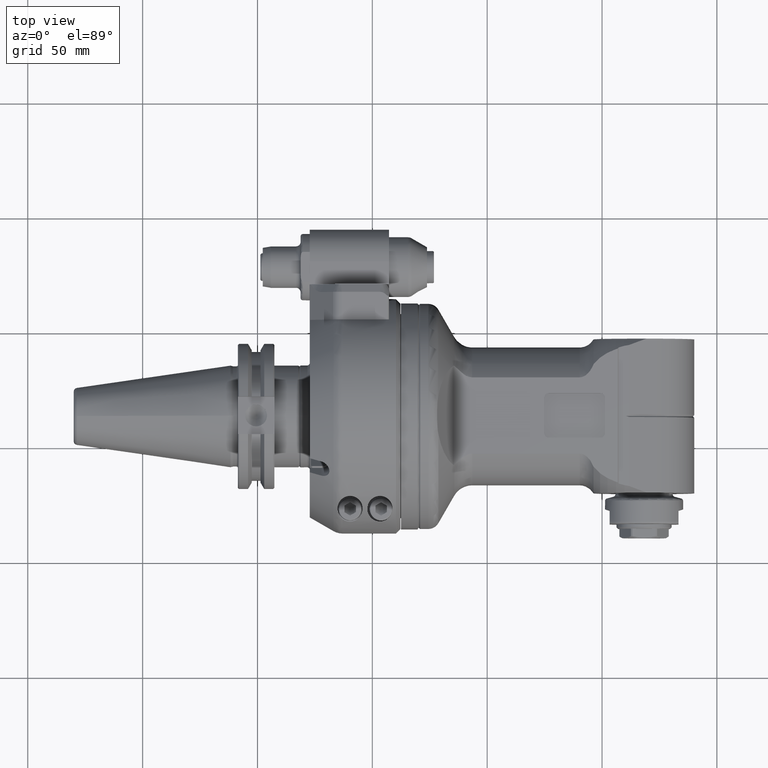
[diagram: clean part render]
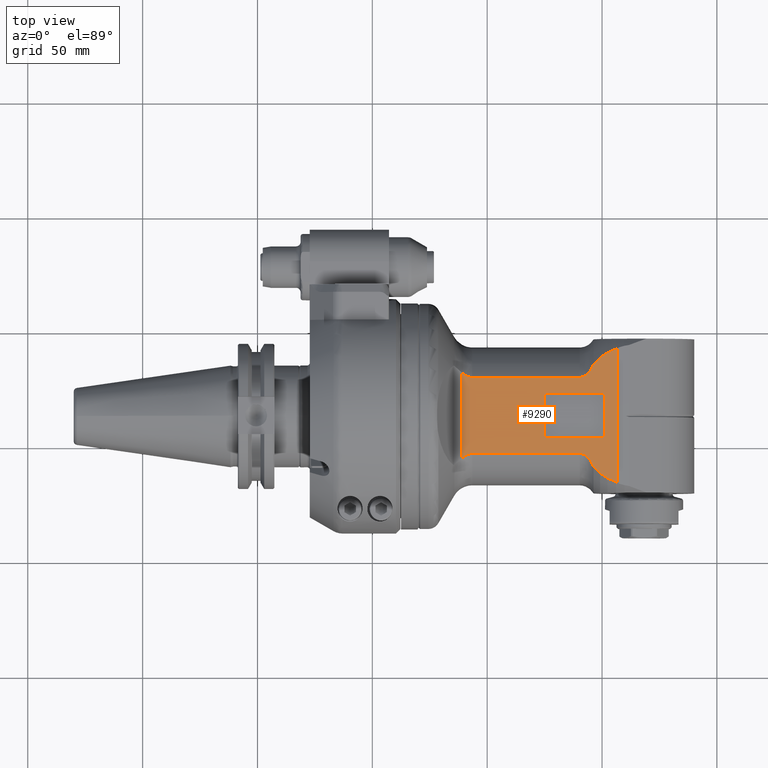
[diagram: same view with one face highlighted and labeled with its STEP entity id]
A machine part, top view. The second image highlights one B-rep face of the part: STEP entity #9290.
In plain terms, the highlighted planar face has unit normal (-0, 0, -1).
Its self-contained STEP definition (entity closure, byte-faithful):
#68=B_SPLINE_CURVE_WITH_KNOTS('',3,(#14260,#14261,#14262,#14263,#14264,
#14265,#14266,#14267),.UNSPECIFIED.,.F.,.F.,(4,2,2,4),(2.68007420427812,
2.85940536172762,3.00882891197884,3.1423743118532),.UNSPECIFIED.);
#69=B_SPLINE_CURVE_WITH_KNOTS('',3,(#14271,#14272,#14273,#14274,#14275,
#14276,#14277,#14278,#14279,#14280,#14281,#14282,#14283,#14284),
 .UNSPECIFIED.,.F.,.F.,(4,2,2,2,2,2,4),(-3.32581351683858,-3.21328851460941,
-3.0207654607387,-2.86863153258841,-2.71649760443812,-2.60114781955608,
-2.49776209313838),.UNSPECIFIED.);
#70=B_SPLINE_CURVE_WITH_KNOTS('',3,(#14315,#14316,#14317,#14318,#14319,
#14320,#14321,#14322,#14323,#14324,#14325,#14326,#14327,#14328),
 .UNSPECIFIED.,.F.,.F.,(4,2,2,2,2,2,4),(-2.49776209313838,-2.39437636672067,
-2.27902658183863,-2.12689265368834,-1.97475872553806,-1.78223567166734,
-1.66971058202039),.UNSPECIFIED.);
#71=B_SPLINE_CURVE_WITH_KNOTS('',3,(#14331,#14332,#14333,#14334,#14335,
#14336,#14337,#14338),.UNSPECIFIED.,.F.,.F.,(4,2,2,4),(3.1423743118532,
3.27591971172755,3.42534326197877,3.60467441942828),.UNSPECIFIED.);
#221=(
BOUNDED_CURVE()
B_SPLINE_CURVE(2,(#14250,#14251,#14252),.UNSPECIFIED.,.F.,.F.)
B_SPLINE_CURVE_WITH_KNOTS((3,3),(10.0626799056423,10.2526008068643),
 .UNSPECIFIED.)
CURVE()
GEOMETRIC_REPRESENTATION_ITEM()
RATIONAL_B_SPLINE_CURVE((1.02840572051089,1.01882819886388,1.00887903028035))
REPRESENTATION_ITEM('')
);
#222=(
BOUNDED_CURVE()
B_SPLINE_CURVE(2,(#14286,#14287,#14288),.UNSPECIFIED.,.F.,.F.)
B_SPLINE_CURVE_WITH_KNOTS((3,3),(-0.959764099372572,-0.6704163678676),
 .UNSPECIFIED.)
CURVE()
GEOMETRIC_REPRESENTATION_ITEM()
RATIONAL_B_SPLINE_CURVE((1.13756783349126,1.11959978720312,1.09996228300112))
REPRESENTATION_ITEM('')
);
#223=(
BOUNDED_CURVE()
B_SPLINE_CURVE(2,(#14289,#14290,#14291),.UNSPECIFIED.,.F.,.F.)
B_SPLINE_CURVE_WITH_KNOTS((3,3),(-0.532913393846783,-0.318014091893998),
 .UNSPECIFIED.)
CURVE()
GEOMETRIC_REPRESENTATION_ITEM()
RATIONAL_B_SPLINE_CURVE((1.06657051683378,1.05402008065282,1.04076639606592))
REPRESENTATION_ITEM('')
);
#224=(
BOUNDED_CURVE()
B_SPLINE_CURVE(2,(#14293,#14294,#14295),.UNSPECIFIED.,.F.,.F.)
B_SPLINE_CURVE_WITH_KNOTS((3,3),(0.177103965921413,0.209806671999694),
 .UNSPECIFIED.)
CURVE()
GEOMETRIC_REPRESENTATION_ITEM()
RATIONAL_B_SPLINE_CURVE((1.01355670021788,1.01479304991963,1.01602375286964))
REPRESENTATION_ITEM('')
);
#225=(
BOUNDED_CURVE()
B_SPLINE_CURVE(2,(#14299,#14300,#14301),.UNSPECIFIED.,.F.,.F.)
B_SPLINE_CURVE_WITH_KNOTS((3,3),(14.4648398716209,14.4975425776885),
 .UNSPECIFIED.)
CURVE()
GEOMETRIC_REPRESENTATION_ITEM()
RATIONAL_B_SPLINE_CURVE((1.01602375273381,1.01479304978397,1.01355670008238))
REPRESENTATION_ITEM('')
);
#226=(
BOUNDED_CURVE()
B_SPLINE_CURVE(2,(#14303,#14304,#14305),.UNSPECIFIED.,.F.,.F.)
B_SPLINE_CURVE_WITH_KNOTS((3,3),(-10.2522074218785,-10.0622916795826),
 .UNSPECIFIED.)
CURVE()
GEOMETRIC_REPRESENTATION_ITEM()
RATIONAL_B_SPLINE_CURVE((1.0088666855915,1.01881573243655,1.02839313689258))
REPRESENTATION_ITEM('')
);
#227=(
BOUNDED_CURVE()
B_SPLINE_CURVE(2,(#14307,#14308,#14309),.UNSPECIFIED.,.F.,.F.)
B_SPLINE_CURVE_WITH_KNOTS((3,3),(-8.41775624130447,-8.20286393257769),
 .UNSPECIFIED.)
CURVE()
GEOMETRIC_REPRESENTATION_ITEM()
RATIONAL_B_SPLINE_CURVE((1.0407483367188,1.05400179132849,1.06655200973496))
REPRESENTATION_ITEM('')
);
#228=(
BOUNDED_CURVE()
B_SPLINE_CURVE(2,(#14311,#14312,#14313),.UNSPECIFIED.,.F.,.F.)
B_SPLINE_CURVE_WITH_KNOTS((3,3),(-7.47705651106012,-7.18771987266258),
 .UNSPECIFIED.)
CURVE()
GEOMETRIC_REPRESENTATION_ITEM()
RATIONAL_B_SPLINE_CURVE((1.09993449274313,1.11957149630538,1.13753908489786))
REPRESENTATION_ITEM('')
);
#363=FACE_BOUND('',#2682,.T.);
#659=LINE('',#14258,#1284);
#660=LINE('',#14269,#1285);
#661=LINE('',#14297,#1286);
#662=LINE('',#14330,#1287);
#663=LINE('',#14341,#1288);
#664=LINE('',#14345,#1289);
#665=LINE('',#14349,#1290);
#666=LINE('',#14353,#1291);
#1284=VECTOR('',#11308,37.09647208267);
#1285=VECTOR('',#11309,46.7720146362);
#1286=VECTOR('',#11310,10.);
#1287=VECTOR('',#11311,46.7720146362);
#1288=VECTOR('',#11312,22.5);
#1289=VECTOR('',#11315,15.5);
#1290=VECTOR('',#11318,22.5);
#1291=VECTOR('',#11321,15.5);
#2075=FACE_OUTER_BOUND('',#2681,.T.);
#2681=EDGE_LOOP('',(#6434,#6435,#6436,#6437,#6438,#6439,#6440,#6441,#6442,
#6443,#6444,#6445,#6446,#6447,#6448,#6449));
#2682=EDGE_LOOP('',(#6450,#6451,#6452,#6453,#6454,#6455,#6456,#6457));
#3379=CIRCLE('',#10009,2.);
#3380=CIRCLE('',#10010,2.);
#3381=CIRCLE('',#10011,2.);
#3382=CIRCLE('',#10012,2.);
#3929=VERTEX_POINT('',#14248);
#3930=VERTEX_POINT('',#14249);
#3931=VERTEX_POINT('',#14256);
#3932=VERTEX_POINT('',#14257);
#3933=VERTEX_POINT('',#14259);
#3934=VERTEX_POINT('',#14268);
#3935=VERTEX_POINT('',#14270);
#3936=VERTEX_POINT('',#14285);
#3937=VERTEX_POINT('',#14292);
#3938=VERTEX_POINT('',#14296);
#3939=VERTEX_POINT('',#14298);
#3940=VERTEX_POINT('',#14302);
#3941=VERTEX_POINT('',#14306);
#3942=VERTEX_POINT('',#14310);
#3943=VERTEX_POINT('',#14314);
#3944=VERTEX_POINT('',#14329);
#3945=VERTEX_POINT('',#14339);
#3946=VERTEX_POINT('',#14340);
#3947=VERTEX_POINT('',#14342);
#3948=VERTEX_POINT('',#14344);
#3949=VERTEX_POINT('',#14346);
#3950=VERTEX_POINT('',#14348);
#3951=VERTEX_POINT('',#14350);
#3952=VERTEX_POINT('',#14352);
#4905=EDGE_CURVE('',#3929,#3930,#221,.T.);
#4908=EDGE_CURVE('',#3931,#3932,#659,.T.);
#4909=EDGE_CURVE('',#3931,#3933,#68,.T.);
#4910=EDGE_CURVE('',#3934,#3933,#660,.T.);
#4911=EDGE_CURVE('',#3935,#3934,#69,.T.);
#4912=EDGE_CURVE('',#3935,#3936,#222,.T.);
#4913=EDGE_CURVE('',#3936,#3929,#223,.T.);
#4914=EDGE_CURVE('',#3937,#3930,#224,.T.);
#4915=EDGE_CURVE('',#3938,#3937,#661,.T.);
#4916=EDGE_CURVE('',#3939,#3938,#225,.T.);
#4917=EDGE_CURVE('',#3939,#3940,#226,.T.);
#4918=EDGE_CURVE('',#3940,#3941,#227,.T.);
#4919=EDGE_CURVE('',#3941,#3942,#228,.T.);
#4920=EDGE_CURVE('',#3943,#3942,#70,.T.);
#4921=EDGE_CURVE('',#3944,#3943,#662,.T.);
#4922=EDGE_CURVE('',#3944,#3932,#71,.T.);
#4923=EDGE_CURVE('',#3945,#3946,#663,.T.);
#4924=EDGE_CURVE('',#3946,#3947,#3379,.T.);
#4925=EDGE_CURVE('',#3947,#3948,#664,.T.);
#4926=EDGE_CURVE('',#3948,#3949,#3380,.T.);
#4927=EDGE_CURVE('',#3949,#3950,#665,.T.);
#4928=EDGE_CURVE('',#3950,#3951,#3381,.T.);
#4929=EDGE_CURVE('',#3951,#3952,#666,.T.);
#4930=EDGE_CURVE('',#3952,#3945,#3382,.T.);
#6434=ORIENTED_EDGE('',*,*,#4908,.F.);
#6435=ORIENTED_EDGE('',*,*,#4909,.T.);
#6436=ORIENTED_EDGE('',*,*,#4910,.F.);
#6437=ORIENTED_EDGE('',*,*,#4911,.F.);
#6438=ORIENTED_EDGE('',*,*,#4912,.T.);
#6439=ORIENTED_EDGE('',*,*,#4913,.T.);
#6440=ORIENTED_EDGE('',*,*,#4905,.T.);
#6441=ORIENTED_EDGE('',*,*,#4914,.F.);
#6442=ORIENTED_EDGE('',*,*,#4915,.F.);
#6443=ORIENTED_EDGE('',*,*,#4916,.F.);
#6444=ORIENTED_EDGE('',*,*,#4917,.T.);
#6445=ORIENTED_EDGE('',*,*,#4918,.T.);
#6446=ORIENTED_EDGE('',*,*,#4919,.T.);
#6447=ORIENTED_EDGE('',*,*,#4920,.F.);
#6448=ORIENTED_EDGE('',*,*,#4921,.F.);
#6449=ORIENTED_EDGE('',*,*,#4922,.T.);
#6450=ORIENTED_EDGE('',*,*,#4923,.T.);
#6451=ORIENTED_EDGE('',*,*,#4924,.T.);
#6452=ORIENTED_EDGE('',*,*,#4925,.T.);
#6453=ORIENTED_EDGE('',*,*,#4926,.T.);
#6454=ORIENTED_EDGE('',*,*,#4927,.T.);
#6455=ORIENTED_EDGE('',*,*,#4928,.T.);
#6456=ORIENTED_EDGE('',*,*,#4929,.T.);
#6457=ORIENTED_EDGE('',*,*,#4930,.T.);
#9013=PLANE('',#10008);
#9290=ADVANCED_FACE('',(#2075,#363),#9013,.F.);
#10008=AXIS2_PLACEMENT_3D('',#14255,#11306,#11307);
#10009=AXIS2_PLACEMENT_3D('',#14343,#11313,#11314);
#10010=AXIS2_PLACEMENT_3D('',#14347,#11316,#11317);
#10011=AXIS2_PLACEMENT_3D('',#14351,#11319,#11320);
#10012=AXIS2_PLACEMENT_3D('',#14354,#11322,#11323);
#11306=DIRECTION('center_axis',(0.,0.,-1.));
#11307=DIRECTION('ref_axis',(1.,0.,0.));
#11308=DIRECTION('',(0.,1.,0.));
#11309=DIRECTION('',(-1.,0.,0.));
#11310=DIRECTION('',(0.,-1.,0.));
#11311=DIRECTION('',(1.,0.,0.));
#11312=DIRECTION('',(-1.,0.,0.));
#11313=DIRECTION('center_axis',(0.,0.,-1.));
#11314=DIRECTION('ref_axis',(0.,-1.,0.));
#11315=DIRECTION('',(0.,1.,0.));
#11316=DIRECTION('center_axis',(0.,0.,-1.));
#11317=DIRECTION('ref_axis',(-1.,0.,0.));
#11318=DIRECTION('',(1.,0.,0.));
#11319=DIRECTION('center_axis',(0.,0.,-1.));
#11320=DIRECTION('ref_axis',(0.,1.,0.));
#11321=DIRECTION('',(0.,-1.,0.));
#11322=DIRECTION('center_axis',(0.,0.,-1.));
#11323=DIRECTION('ref_axis',(1.,0.,0.));
#14248=CARTESIAN_POINT('',(94.0730565743641,-27.2763634946809,24.9999999690279));
#14249=CARTESIAN_POINT('',(97.766276708296,-28.8832131299173,24.9999999959775));
#14250=CARTESIAN_POINT('Ctrl Pts',(94.0730565896248,-27.2763634604014,25.));
#14251=CARTESIAN_POINT('Ctrl Pts',(95.8668310521675,-28.0669676858729,25.));
#14252=CARTESIAN_POINT('Ctrl Pts',(97.7662767088955,-28.8832131285638,25.));
#14255=CARTESIAN_POINT('Origin',(48.00000004466,-58.8000024,25.));
#14256=CARTESIAN_POINT('',(30.8008301975,-18.54823604133,25.));
#14257=CARTESIAN_POINT('',(30.8008301975,18.54823604133,25.));
#14258=CARTESIAN_POINT('',(30.8008301975,-18.54823604133,25.));
#14259=CARTESIAN_POINT('',(35.16580758197,-16.58312395178,25.));
#14260=CARTESIAN_POINT('Ctrl Pts',(30.8008301975013,-18.5482360413314,25.));
#14261=CARTESIAN_POINT('Ctrl Pts',(31.2768824719658,-18.1051437659629,25.));
#14262=CARTESIAN_POINT('Ctrl Pts',(31.7927287077858,-17.713449802726,25.));
#14263=CARTESIAN_POINT('Ctrl Pts',(32.7382766269785,-17.1595326432425,25.));
#14264=CARTESIAN_POINT('Ctrl Pts',(33.2844305992261,-16.9167277905047,25.));
#14265=CARTESIAN_POINT('Ctrl Pts',(34.1920196550243,-16.6598919965139,25.));
#14266=CARTESIAN_POINT('Ctrl Pts',(34.7206562490555,-16.583123951777,25.));
#14267=CARTESIAN_POINT('Ctrl Pts',(35.16580758197,-16.583123951777,25.));
#14268=CARTESIAN_POINT('',(81.93782221817,-16.58312395178,25.));
#14269=CARTESIAN_POINT('',(81.93782221817,-16.58312395178,25.));
#14270=CARTESIAN_POINT('',(88.0000003213942,-22.2991037344195,24.9999998483624));
#14271=CARTESIAN_POINT('Ctrl Pts',(88.0000002856868,-22.2991037481422,25.));
#14272=CARTESIAN_POINT('Ctrl Pts',(87.8570280916971,-21.9270808407463,25.));
#14273=CARTESIAN_POINT('Ctrl Pts',(87.6935946921902,-21.5500745930567,25.));
#14274=CARTESIAN_POINT('Ctrl Pts',(87.2036025382881,-20.5518000895077,25.));
#14275=CARTESIAN_POINT('Ctrl Pts',(86.8418295870736,-19.9481759632981,25.));
#14276=CARTESIAN_POINT('Ctrl Pts',(86.1684215512574,-19.0173735566937,25.));
#14277=CARTESIAN_POINT('Ctrl Pts',(85.8122244578217,-18.5891145938405,25.));
#14278=CARTESIAN_POINT('Ctrl Pts',(85.0206983836014,-17.8190712330243,25.));
#14279=CARTESIAN_POINT('Ctrl Pts',(84.5843919534727,-17.478292191667,25.));
#14280=CARTESIAN_POINT('Ctrl Pts',(83.8152160730215,-17.0273586096957,25.));
#14281=CARTESIAN_POINT('Ctrl Pts',(83.3934489095303,-16.8402713953867,25.));
#14282=CARTESIAN_POINT('Ctrl Pts',(82.6917353349449,-16.6422520575151,25.));
#14283=CARTESIAN_POINT('Ctrl Pts',(82.282441306229,-16.583123951777,25.));
#14284=CARTESIAN_POINT('Ctrl Pts',(81.93782221817,-16.583123951777,25.));
#14285=CARTESIAN_POINT('',(90.8562966483786,-25.2041669857687,24.9999998136759));
#14286=CARTESIAN_POINT('Ctrl Pts',(88.000000482371,-22.2991035814185,25.));
#14287=CARTESIAN_POINT('Ctrl Pts',(89.3408101630023,-23.7095328932192,25.));
#14288=CARTESIAN_POINT('Ctrl Pts',(90.8562966895663,-25.2041669449931,25.));
#14289=CARTESIAN_POINT('Ctrl Pts',(90.8562967754463,-25.2041667933738,25.));
#14290=CARTESIAN_POINT('Ctrl Pts',(92.4011697074171,-26.2188286251669,25.));
#14291=CARTESIAN_POINT('Ctrl Pts',(94.0730565813035,-27.2763634840399,25.));
#14292=CARTESIAN_POINT('',(98.4900005095658,-29.0863623621592,24.999999794761));
#14293=CARTESIAN_POINT('Ctrl Pts',(98.4900006372509,-29.086361927791,25.));
#14294=CARTESIAN_POINT('Ctrl Pts',(98.1268705630049,-28.9845834161671,25.));
#14295=CARTESIAN_POINT('Ctrl Pts',(97.7662767096866,-28.8832131250135,25.));
#14296=CARTESIAN_POINT('',(98.4900005095658,29.0863623621592,24.999999794761));
#14297=CARTESIAN_POINT('',(98.4900000000001,-29.4000012000001,25.));
#14298=CARTESIAN_POINT('',(97.7662767082955,28.883213129917,24.9999999959776));
#14299=CARTESIAN_POINT('Ctrl Pts',(97.766276709686,28.8832131250133,25.));
#14300=CARTESIAN_POINT('Ctrl Pts',(98.1268705630045,28.984583416167,25.));
#14301=CARTESIAN_POINT('Ctrl Pts',(98.4900006372509,29.0863619277909,25.));
#14302=CARTESIAN_POINT('',(94.0730565743643,27.276363494681,24.9999999690278));
#14303=CARTESIAN_POINT('Ctrl Pts',(97.7662767088949,28.8832131285635,25.));
#14304=CARTESIAN_POINT('Ctrl Pts',(95.8668310521673,28.0669676858729,25.));
#14305=CARTESIAN_POINT('Ctrl Pts',(94.073056589625,27.2763634604015,25.));
#14306=CARTESIAN_POINT('',(90.8562966483176,25.2041669856958,24.9999998136967));
#14307=CARTESIAN_POINT('Ctrl Pts',(94.0730565813037,27.27636348404,25.));
#14308=CARTESIAN_POINT('Ctrl Pts',(92.401169707376,26.218828625141,25.));
#14309=CARTESIAN_POINT('Ctrl Pts',(90.8562967753703,25.2041667933239,25.));
#14310=CARTESIAN_POINT('',(88.0000007039945,22.2991045825147,24.999999638726));
#14311=CARTESIAN_POINT('Ctrl Pts',(90.8562966894988,25.2041669449266,25.));
#14312=CARTESIAN_POINT('Ctrl Pts',(89.3408105043881,23.7095332299057,25.));
#14313=CARTESIAN_POINT('Ctrl Pts',(88.000001087571,22.2991042180426,25.));
#14314=CARTESIAN_POINT('',(81.93782221817,16.58312395178,25.));
#14315=CARTESIAN_POINT('Ctrl Pts',(81.93782221817,16.583123951777,25.));
#14316=CARTESIAN_POINT('Ctrl Pts',(82.282441306229,16.583123951777,25.));
#14317=CARTESIAN_POINT('Ctrl Pts',(82.6917353349449,16.6422520575151,25.));
#14318=CARTESIAN_POINT('Ctrl Pts',(83.3934489095303,16.8402713953867,25.));
#14319=CARTESIAN_POINT('Ctrl Pts',(83.8152160730215,17.0273586096957,25.));
#14320=CARTESIAN_POINT('Ctrl Pts',(84.5843919534727,17.478292191667,25.));
#14321=CARTESIAN_POINT('Ctrl Pts',(85.0206983836014,17.8190712330244,25.));
#14322=CARTESIAN_POINT('Ctrl Pts',(85.8122244578217,18.5891145938405,25.));
#14323=CARTESIAN_POINT('Ctrl Pts',(86.1684215512574,19.0173735566936,25.));
#14324=CARTESIAN_POINT('Ctrl Pts',(86.8418295870736,19.9481759632981,25.));
#14325=CARTESIAN_POINT('Ctrl Pts',(87.2036025382881,20.5518000895077,25.));
#14326=CARTESIAN_POINT('Ctrl Pts',(87.6935948326076,21.5500748791327,25.));
#14327=CARTESIAN_POINT('Ctrl Pts',(87.857028345229,21.927081426712,25.));
#14328=CARTESIAN_POINT('Ctrl Pts',(88.0000006189109,22.2991046152131,25.));
#14329=CARTESIAN_POINT('',(35.16580758197,16.58312395178,25.));
#14330=CARTESIAN_POINT('',(35.16580758197,16.58312395178,25.));
#14331=CARTESIAN_POINT('Ctrl Pts',(35.16580758197,16.583123951777,25.));
#14332=CARTESIAN_POINT('Ctrl Pts',(34.7206562490555,16.583123951777,25.));
#14333=CARTESIAN_POINT('Ctrl Pts',(34.1920196550243,16.6598919965139,25.));
#14334=CARTESIAN_POINT('Ctrl Pts',(33.2844305992261,16.9167277905047,25.));
#14335=CARTESIAN_POINT('Ctrl Pts',(32.7382766269785,17.1595326432425,25.));
#14336=CARTESIAN_POINT('Ctrl Pts',(31.7927287077858,17.713449802726,25.));
#14337=CARTESIAN_POINT('Ctrl Pts',(31.2768824719658,18.1051437659629,25.));
#14338=CARTESIAN_POINT('Ctrl Pts',(30.8008301975013,18.5482360413314,25.));
#14339=CARTESIAN_POINT('',(91.,-9.75,25.));
#14340=CARTESIAN_POINT('',(68.5,-9.75,25.));
#14341=CARTESIAN_POINT('',(91.,-9.75,25.));
#14342=CARTESIAN_POINT('',(66.5,-7.75,25.));
#14343=CARTESIAN_POINT('Origin',(68.5,-7.75,25.));
#14344=CARTESIAN_POINT('',(66.5,7.75,25.));
#14345=CARTESIAN_POINT('',(66.5,-7.75,25.));
#14346=CARTESIAN_POINT('',(68.5,9.75,25.));
#14347=CARTESIAN_POINT('Origin',(68.5,7.75,25.));
#14348=CARTESIAN_POINT('',(91.,9.75,25.));
#14349=CARTESIAN_POINT('',(68.5,9.75,25.));
#14350=CARTESIAN_POINT('',(93.,7.75,25.));
#14351=CARTESIAN_POINT('Origin',(91.,7.75,25.));
#14352=CARTESIAN_POINT('',(93.,-7.75,25.));
#14353=CARTESIAN_POINT('',(93.,7.75,25.));
#14354=CARTESIAN_POINT('Origin',(91.,-7.75,25.));